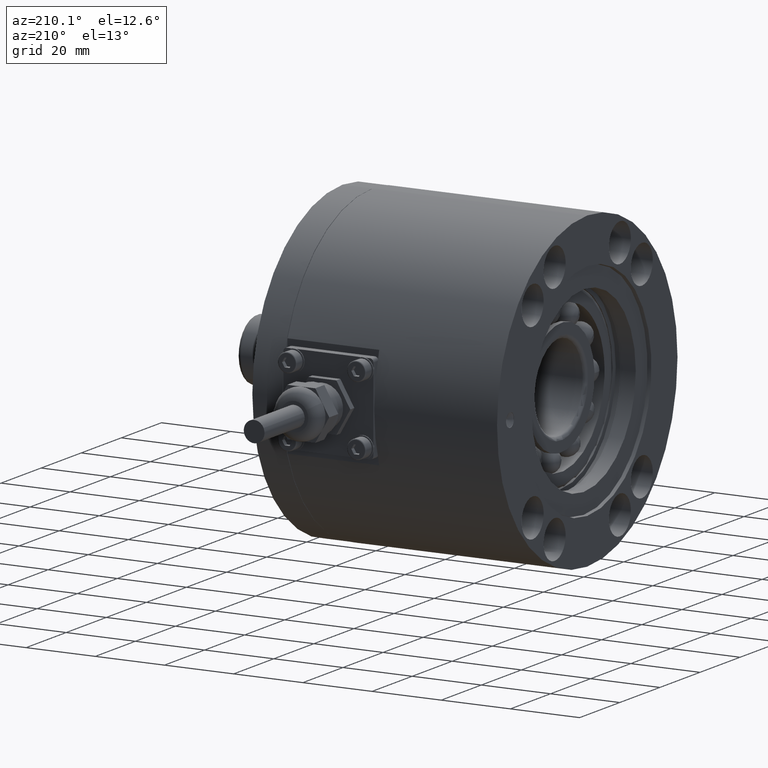
[diagram: clean part render]
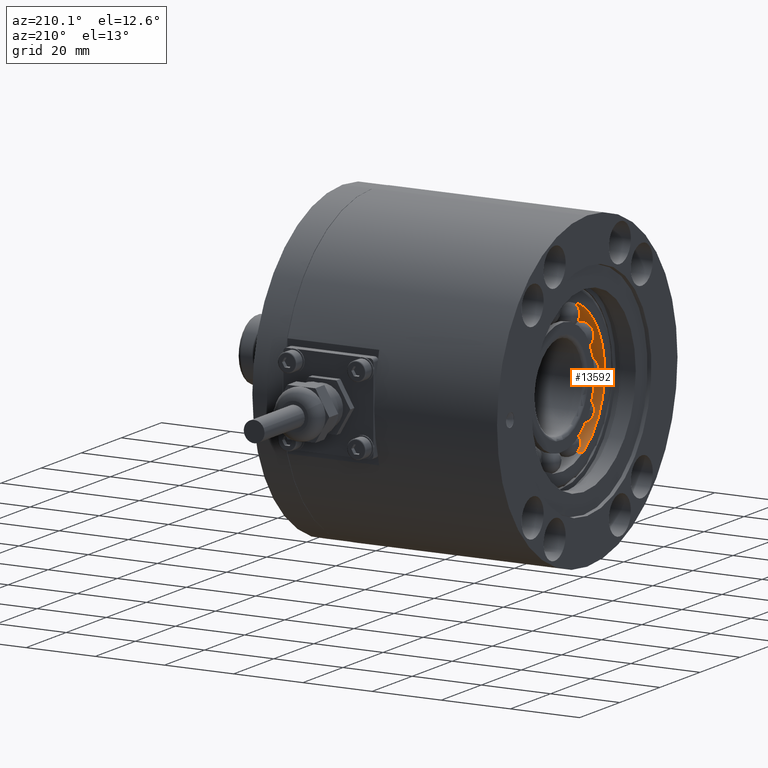
[diagram: same view with one face highlighted and labeled with its STEP entity id]
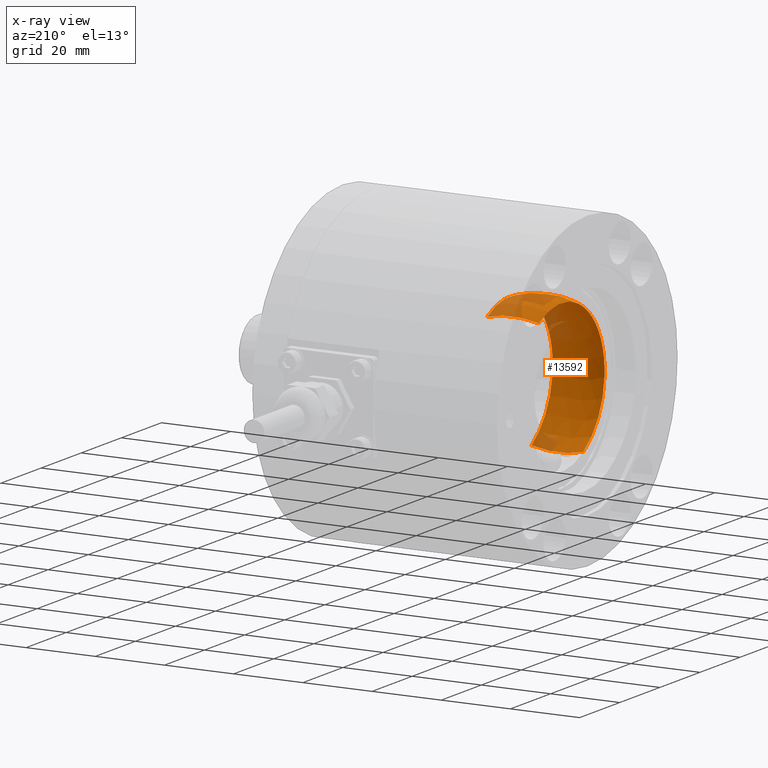
[diagram: x-ray of the same camera — body ghosted, the highlighted face saturated]
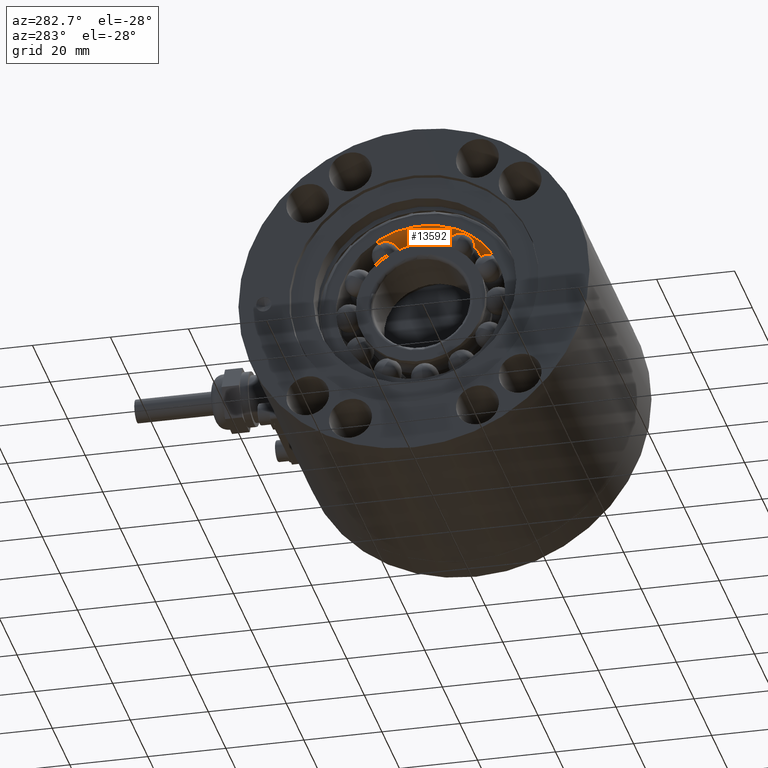
[diagram: same view with one face highlighted and labeled with its STEP entity id]
A machine part, auxiliary view. The second image highlights one B-rep face of the part: STEP entity #13592.
The next image is the same camera in x-ray: the body ghosted, the highlighted face saturated — about 20% of this face is hidden behind the body in this view.
A second angle (auxiliary view) of the same face is appended — the face is thin or edge-on in the first view.
In plain terms, the highlighted spherical surface has radius 22.915 mm.
Its self-contained STEP definition (entity closure, byte-faithful):
#97 = EDGE_CURVE ( 'NONE', #6125, #8755, #11541, .T. ) ;
#199 = FACE_OUTER_BOUND ( 'NONE', #7899, .T. ) ;
#534 = DIRECTION ( 'NONE',  ( 0.000000000000000000, 6.123031769111888756E-17, 1.000000000000000000 ) ) ;
#833 = DIRECTION ( 'NONE',  ( 0.000000000000000000, 1.000000000000000000, -6.123031769111888756E-17 ) ) ;
#1548 = CARTESIAN_POINT ( 'NONE',  ( 7.499999999847229759, 0.000000000000000000, 0.000000000000000000 ) ) ;
#1698 = CARTESIAN_POINT ( 'NONE',  ( 0.000000000000000000, 0.000000000000000000, 0.000000000000000000 ) ) ;
#2133 = DIRECTION ( 'NONE',  ( 1.000000000000000000, 0.000000000000000000, 0.000000000000000000 ) ) ;
#3295 = CARTESIAN_POINT ( 'NONE',  ( 14.99999999996729905, 21.65288135158709792, -2.244267569467259871E-15 ) ) ;
#4145 = DIRECTION ( 'NONE',  ( -1.224606353822379970E-16, -6.123031769111888756E-17, -1.000000000000000000 ) ) ;
#4146 = CARTESIAN_POINT ( 'NONE',  ( 14.99999999996729905, 0.000000000000000000, 0.000000000000000000 ) ) ;
#4556 = AXIS2_PLACEMENT_3D ( 'NONE', #4146, #11200, #7718 ) ;
#4766 = EDGE_CURVE ( 'NONE', #7659, #6125, #11437, .T. ) ;
#5366 = AXIS2_PLACEMENT_3D ( 'NONE', #11107, #4145, #833 ) ;
#5448 = DIRECTION ( 'NONE',  ( -0.000000000000000000, 6.123031769111888756E-17, 1.000000000000000000 ) ) ;
#5809 = CIRCLE ( 'NONE', #14390, 21.65288135168160011 ) ;
#6025 = DIRECTION ( 'NONE',  ( 0.000000000000000000, 1.000000000000000000, -6.123031769111888756E-17 ) ) ;
#6125 = VERTEX_POINT ( 'NONE', #10114 ) ;
#6870 = ORIENTED_EDGE ( 'NONE', *, *, #14324, .T. ) ;
#7288 = DIRECTION ( 'NONE',  ( 1.000000000000000000, 0.000000000000000000, 0.000000000000000000 ) ) ;
#7659 = VERTEX_POINT ( 'NONE', #3295 ) ;
#7718 = DIRECTION ( 'NONE',  ( 0.000000000000000000, 6.123031769111888756E-17, 1.000000000000000000 ) ) ;
#7774 = CIRCLE ( 'NONE', #13241, 22.91500100141460194 ) ;
#7899 = EDGE_LOOP ( 'NONE', ( #6870, #9148, #9533, #14246 ) ) ;
#8171 = CARTESIAN_POINT ( 'NONE',  ( 0.000000000000000000, 21.65288135168160011, -4.073580387434929673E-16 ) ) ;
#8755 = VERTEX_POINT ( 'NONE', #8798 ) ;
#8798 = CARTESIAN_POINT ( 'NONE',  ( 0.000000000000000000, -21.65288135168160011, 2.244267569439639879E-15 ) ) ;
#9123 = VERTEX_POINT ( 'NONE', #8171 ) ;
#9148 = ORIENTED_EDGE ( 'NONE', *, *, #4766, .T. ) ;
#9533 = ORIENTED_EDGE ( 'NONE', *, *, #97, .T. ) ;
#10114 = CARTESIAN_POINT ( 'NONE',  ( 14.99999999996729905, -21.65288135158709792, 4.073580387042990049E-16 ) ) ;
#10133 = CARTESIAN_POINT ( 'NONE',  ( 7.499999999847229759, 0.000000000000000000, 0.000000000000000000 ) ) ;
#10439 = AXIS2_PLACEMENT_3D ( 'NONE', #10133, #5448, #2133 ) ;
#11107 = CARTESIAN_POINT ( 'NONE',  ( 7.499999999847229759, 0.000000000000000000, 0.000000000000000000 ) ) ;
#11200 = DIRECTION ( 'NONE',  ( 1.000000000000000000, 0.000000000000000000, 0.000000000000000000 ) ) ;
#11437 = CIRCLE ( 'NONE', #4556, 21.65288135158709792 ) ;
#11541 = CIRCLE ( 'NONE', #5366, 22.91500100141460194 ) ;
#12920 = DIRECTION ( 'NONE',  ( -1.224606353822379970E-16, -6.123031769111888756E-17, -1.000000000000000000 ) ) ;
#13241 = AXIS2_PLACEMENT_3D ( 'NONE', #1548, #12920, #6025 ) ;
#13361 = EDGE_CURVE ( 'NONE', #9123, #8755, #5809, .T. ) ;
#13592 = ADVANCED_FACE ( 'NONE', ( #199 ), #14103, .F. ) ;
#14103 = SPHERICAL_SURFACE ( 'NONE', #10439, 22.91500100141460194 ) ;
#14246 = ORIENTED_EDGE ( 'NONE', *, *, #13361, .F. ) ;
#14324 = EDGE_CURVE ( 'NONE', #9123, #7659, #7774, .T. ) ;
#14390 = AXIS2_PLACEMENT_3D ( 'NONE', #1698, #7288, #534 ) ;